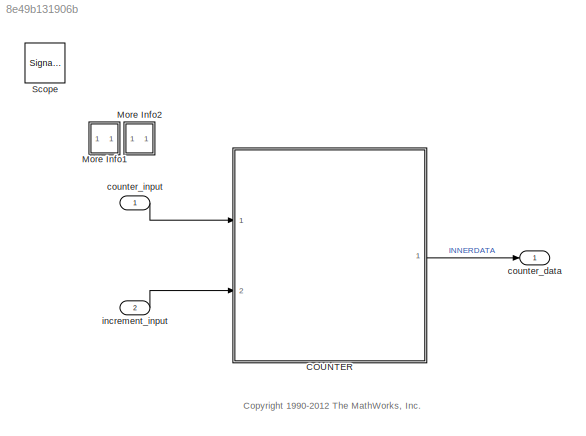
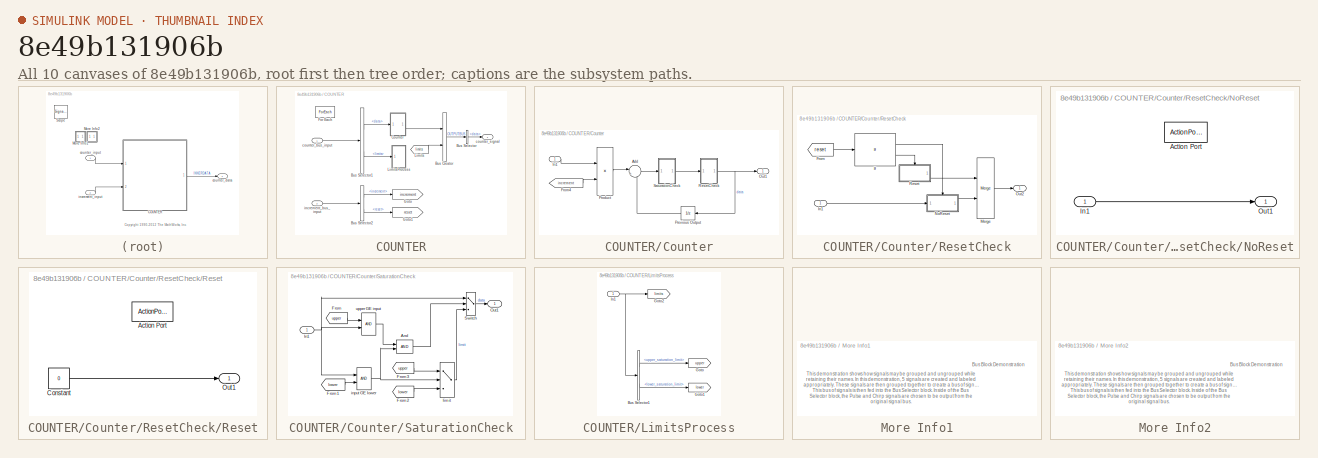
[diagram: thumbnail index - all 10 canvases of the model, root first then tree order]
MODEL slx_8e49b131906b
KIND model
CONFIG PreLoadFcn = load sldemo_mdlref_counter_bus.mat
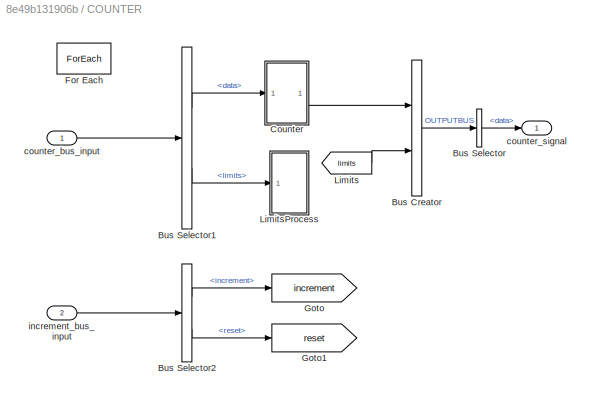
BLOCK [SubSystem] COUNTER
  FunctionWithSeparateData = off
  MaskHideContents = off
  MinAlgLoopOccurrences = off
  Opaque = off
  Ports = [2, 1]
  PropExecContextOutsideSubsystem = off
  RTWSystemCode = Auto
  RequestExecContextInheritance = off
BLOCK [BusCreator] COUNTER/Bus Creator
  DisplayOption = bar
  Inputs = 2
  NonVirtualBus = on
  OutDataTypeStr = Bus: COUNTERBUS
  Ports = [2, 1]
BLOCK [BusSelector] COUNTER/Bus Selector
  OutputSignals = data
  Ports = [1, 1]
BLOCK [BusSelector] COUNTER/Bus Selector1
  OutputSignals = data,limits
  Ports = [1, 2]
BLOCK [BusSelector] COUNTER/Bus Selector2
  OutputSignals = increment,reset
  Ports = [1, 2]
BLOCK [SubSystem] COUNTER/Counter
  FunctionWithSeparateData = off
  MaskHideContents = off
  MinAlgLoopOccurrences = off
  Opaque = off
  Ports = [1, 1]
  PropExecContextOutsideSubsystem = off
  RTWSystemCode = Auto
  RequestExecContextInheritance = off
BLOCK [Sum] COUNTER/Counter/Add
  IconShape = round
  InputSameDT = off
  Inputs = |++
  OutDataTypeStr = Inherit: Inherit via internal rule
  Ports = [2, 1]
  SaturateOnIntegerOverflow = off
BLOCK [From] COUNTER/Counter/From4
  GotoTag = increment
  TagVisibility = global
BLOCK [Inport] COUNTER/Counter/In1
  IconDisplay = Port number
BLOCK [Outport] COUNTER/Counter/Out1
  IconDisplay = Port number
BLOCK [UnitDelay] COUNTER/Counter/Previous Output
  SampleTime = -1
BLOCK [Product] COUNTER/Counter/Product
  InputSameDT = off
  OutDataTypeStr = int32
  Ports = [2, 1]
  SaturateOnIntegerOverflow = off
BLOCK [SubSystem] COUNTER/Counter/ResetCheck
  FunctionWithSeparateData = off
  MaskHideContents = off
  MinAlgLoopOccurrences = off
  Opaque = off
  Ports = [1, 1]
  PropExecContextOutsideSubsystem = off
  RTWSystemCode = Auto
  RequestExecContextInheritance = off
BLOCK [From] COUNTER/Counter/ResetCheck/From
  GotoTag = reset
  TagVisibility = global
BLOCK [If] COUNTER/Counter/ResetCheck/If
  IfExpression = ~u1
  Ports = [1, 2]
BLOCK [Inport] COUNTER/Counter/ResetCheck/In1
  IconDisplay = Port number
BLOCK [Merge] COUNTER/Counter/ResetCheck/Merge
  Ports = [2, 1]
BLOCK [SubSystem] COUNTER/Counter/ResetCheck/NoReset
  FunctionWithSeparateData = off
  MaskHideContents = off
  MinAlgLoopOccurrences = off
  Opaque = off
  Ports = [1, 1, 0, 0, 0, 0, 0, 1]
  PropExecContextOutsideSubsystem = off
  RTWSystemCode = Auto
  RequestExecContextInheritance = off
  TreatAsAtomicUnit = on
BLOCK [ActionPort] COUNTER/Counter/ResetCheck/NoReset/Action Port
  ActionType = then
BLOCK [Inport] COUNTER/Counter/ResetCheck/NoReset/In1
  IconDisplay = Port number
BLOCK [Outport] COUNTER/Counter/ResetCheck/NoReset/Out1
  IconDisplay = Port number
BLOCK [Outport] COUNTER/Counter/ResetCheck/Out2
  IconDisplay = Port number
BLOCK [SubSystem] COUNTER/Counter/ResetCheck/Reset
  FunctionWithSeparateData = off
  MaskHideContents = off
  MinAlgLoopOccurrences = off
  Opaque = off
  Ports = [0, 1, 0, 0, 0, 0, 0, 1]
  PropExecContextOutsideSubsystem = off
  RTWSystemCode = Auto
  RequestExecContextInheritance = off
  TreatAsAtomicUnit = on
BLOCK [ActionPort] COUNTER/Counter/ResetCheck/Reset/Action Port
  ActionType = else
BLOCK [Constant] COUNTER/Counter/ResetCheck/Reset/Constant
  OutDataTypeStr = int32
  Value = 0
BLOCK [Outport] COUNTER/Counter/ResetCheck/Reset/Out1
  IconDisplay = Port number
  InitialOutput = 0
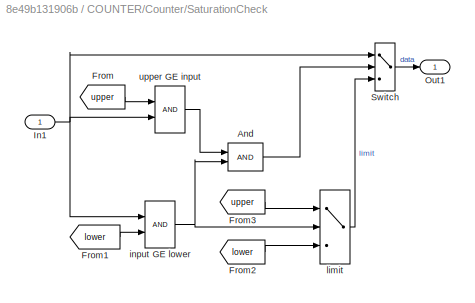
BLOCK [SubSystem] COUNTER/Counter/SaturationCheck
  FunctionWithSeparateData = off
  MaskHideContents = off
  MinAlgLoopOccurrences = off
  Opaque = off
  Ports = [1, 1]
  PropExecContextOutsideSubsystem = off
  RTWSystemCode = Auto
  RequestExecContextInheritance = off
BLOCK [RelationalOperator] COUNTER/Counter/SaturationCheck/ input GE lower
  AttributesFormatString = \n
  OutDataTypeStr = boolean
  Ports = [2, 1]
  Priority = 1
BLOCK [Logic] COUNTER/Counter/SaturationCheck/And
  IconShape = distinctive
  OutDataTypeStr = boolean
  Ports = [2, 1]
BLOCK [From] COUNTER/Counter/SaturationCheck/From
  GotoTag = upper
  TagVisibility = global
BLOCK [From] COUNTER/Counter/SaturationCheck/From1
  GotoTag = lower
  TagVisibility = global
BLOCK [From] COUNTER/Counter/SaturationCheck/From2
  GotoTag = lower
  TagVisibility = global
BLOCK [From] COUNTER/Counter/SaturationCheck/From3
  GotoTag = upper
  TagVisibility = global
BLOCK [Inport] COUNTER/Counter/SaturationCheck/In1
  IconDisplay = Port number
BLOCK [Outport] COUNTER/Counter/SaturationCheck/Out1
  IconDisplay = Port number
BLOCK [Switch] COUNTER/Counter/SaturationCheck/Switch
  Threshold = 0.5
BLOCK [Switch] COUNTER/Counter/SaturationCheck/limit
  Threshold = 0.5
BLOCK [RelationalOperator] COUNTER/Counter/SaturationCheck/upper GE input
  AttributesFormatString = \n
  OutDataTypeStr = boolean
  Ports = [2, 1]
  Priority = 0
BLOCK [ForEach] COUNTER/For Each
  DisableCoverage = on
  IndexMode = One-based
  Ports = []
BLOCK [Goto] COUNTER/Goto
  GotoTag = increment
  TagVisibility = global
BLOCK [Goto] COUNTER/Goto1
  GotoTag = reset
  TagVisibility = global
BLOCK [From] COUNTER/Limits
  GotoTag = limits
  TagVisibility = global
BLOCK [SubSystem] COUNTER/LimitsProcess
  FunctionWithSeparateData = off
  MaskHideContents = off
  MinAlgLoopOccurrences = off
  Opaque = off
  Ports = [1]
  PropExecContextOutsideSubsystem = off
  RTWSystemCode = Auto
  RequestExecContextInheritance = off
BLOCK [BusSelector] COUNTER/LimitsProcess/Bus Selector1
  OutputSignals = upper_saturation_limit,lower_saturation_limit
  Ports = [1, 2]
BLOCK [Goto] COUNTER/LimitsProcess/Goto
  GotoTag = upper
  TagVisibility = global
BLOCK [Goto] COUNTER/LimitsProcess/Goto1
  GotoTag = lower
  TagVisibility = global
BLOCK [Goto] COUNTER/LimitsProcess/Goto2
  GotoTag = limits
  TagVisibility = global
BLOCK [Inport] COUNTER/LimitsProcess/In1
  IconDisplay = Port number
BLOCK [Inport] COUNTER/counter_bus_input
  IconDisplay = Port number
  OutDataTypeStr = Bus: COUNTERBUS
  Partition = on
  PartitionDimension = 1
  PartitionWidth = 1
BLOCK [Outport] COUNTER/counter_signal
  ConcatenationDimension = 1
  IconDisplay = Port number
BLOCK [Inport] COUNTER/increment_bus_input
  IconDisplay = Port number
  OutDataTypeStr = Bus: INCREMENTBUS
  Partition = off
  Port = 2
BLOCK [SubSystem] More Info1
  FunctionWithSeparateData = off
  MaskHideContents = off
  MinAlgLoopOccurrences = off
  Opaque = off
  OpenFcn = showdemo('sldemo_mdlref_bus')
  Ports = []
  PropExecContextOutsideSubsystem = off
  RTWSystemCode = Auto
  RequestExecContextInheritance = off
BLOCK [SubSystem] More Info2
  FunctionWithSeparateData = off
  MaskHideContents = off
  MinAlgLoopOccurrences = off
  Opaque = off
  OpenFcn = html = fullfile(matlabroot, 'toolbox', 'simulink', 'simdemos', 'simfeatures', 'html', 'sldemo_mdlref_protect.html');\n                                                                                                                    \nif(isempty(dir(html)))                                                                                              \n   error('simdemos:sldemo_mdlref_bus:notFound','"...<+305ch>
  Ports = []
  PropExecContextOutsideSubsystem = off
  RTWSystemCode = Auto
  RequestExecContextInheritance = off
BLOCK [SignalViewerScope] Scope
  IOType = viewer
  MaxDataPoints = 7500
  NumInputPorts = 1
  Ports = []
  RefreshTime = 0.035000
  ShowDataMarkers = off
  ShowLegends = on
  YMax = 45
BLOCK [Outport] counter_data
  IconDisplay = Port number
BLOCK [Inport] counter_input
  BusOutputAsStruct = on
  IconDisplay = Port number
  OutDataTypeStr = Bus: COUNTERBUS
  PortDimensions = [2 1]
BLOCK [Inport] increment_input
  BusOutputAsStruct = on
  IconDisplay = Port number
  OutDataTypeStr = Bus: INCREMENTBUS
  Port = 2
  PortDimensions = 1
ANNOTATION (root): <copyright redacted>
ANNOTATION More Info1: Bus Block Demonstration
ANNOTATION More Info1: This demonstration shows how signals may be grouped and ungrouped while retaining their names. In this demonstration, 5 signals are created and labeled appropriately. These signals are then grouped together to create a bus of signals. This bus of signals is then fed into the Bus Selector block. Inside of the Bus Selector block, the Pulse and Chirp signals are chosen to be output from the original ...<+115ch>
ANNOTATION More Info2: Bus Block Demonstration
ANNOTATION More Info2: This demonstration shows how signals may be grouped and ungrouped while retaining their names. In this demonstration, 5 signals are created and labeled appropriately. These signals are then grouped together to create a bus of signals. This bus of signals is then fed into the Bus Selector block. Inside of the Bus Selector block, the Pulse and Chirp signals are chosen to be output from the original ...<+115ch>
LINE COUNTER/Bus Creator:1 -> COUNTER/Bus Selector:1
LINE COUNTER/Bus Selector1:1 -> COUNTER/Counter:1
LINE COUNTER/Bus Selector1:2 -> COUNTER/LimitsProcess:1
LINE COUNTER/Bus Selector2:1 -> COUNTER/Goto:1
LINE COUNTER/Bus Selector2:2 -> COUNTER/Goto1:1
LINE COUNTER/Bus Selector:1 -> COUNTER/counter_signal:1
LINE COUNTER/Counter/Add:1 -> COUNTER/Counter/SaturationCheck:1
LINE COUNTER/Counter/From4:1 -> COUNTER/Counter/Product:2
LINE COUNTER/Counter/In1:1 -> COUNTER/Counter/Product:1
LINE COUNTER/Counter/Previous Output:1 -> COUNTER/Counter/Add:2
LINE COUNTER/Counter/Product:1 -> COUNTER/Counter/Add:1
LINE COUNTER/Counter/ResetCheck/From:1 -> COUNTER/Counter/ResetCheck/If:1
LINE COUNTER/Counter/ResetCheck/If:1 -> COUNTER/Counter/ResetCheck/NoReset:ifaction
LINE COUNTER/Counter/ResetCheck/If:2 -> COUNTER/Counter/ResetCheck/Reset:ifaction
LINE COUNTER/Counter/ResetCheck/In1:1 -> COUNTER/Counter/ResetCheck/NoReset:1
LINE COUNTER/Counter/ResetCheck/Merge:1 -> COUNTER/Counter/ResetCheck/Out2:1
LINE COUNTER/Counter/ResetCheck/NoReset/In1:1 -> COUNTER/Counter/ResetCheck/NoReset/Out1:1
LINE COUNTER/Counter/ResetCheck/NoReset:1 -> COUNTER/Counter/ResetCheck/Merge:2
LINE COUNTER/Counter/ResetCheck/Reset/Constant:1 -> COUNTER/Counter/ResetCheck/Reset/Out1:1
LINE COUNTER/Counter/ResetCheck/Reset:1 -> COUNTER/Counter/ResetCheck/Merge:1
NET COUNTER/Counter/ResetCheck:1 -> COUNTER/Counter/Out1:1, COUNTER/Counter/Previous Output:1
NET COUNTER/Counter/SaturationCheck/ input GE lower:1 -> COUNTER/Counter/SaturationCheck/And:2, COUNTER/Counter/SaturationCheck/limit:2
LINE COUNTER/Counter/SaturationCheck/And:1 -> COUNTER/Counter/SaturationCheck/Switch:2
LINE COUNTER/Counter/SaturationCheck/From1:1 -> COUNTER/Counter/SaturationCheck/ input GE lower:2
LINE COUNTER/Counter/SaturationCheck/From2:1 -> COUNTER/Counter/SaturationCheck/limit:3
LINE COUNTER/Counter/SaturationCheck/From3:1 -> COUNTER/Counter/SaturationCheck/limit:1
LINE COUNTER/Counter/SaturationCheck/From:1 -> COUNTER/Counter/SaturationCheck/upper GE input:1
NET COUNTER/Counter/SaturationCheck/In1:1 -> COUNTER/Counter/SaturationCheck/ input GE lower:1, COUNTER/Counter/SaturationCheck/Switch:1, COUNTER/Counter/SaturationCheck/upper GE input:2
LINE COUNTER/Counter/SaturationCheck/Switch:1 -> COUNTER/Counter/SaturationCheck/Out1:1
LINE COUNTER/Counter/SaturationCheck/limit:1 -> COUNTER/Counter/SaturationCheck/Switch:3
LINE COUNTER/Counter/SaturationCheck/upper GE input:1 -> COUNTER/Counter/SaturationCheck/And:1
LINE COUNTER/Counter/SaturationCheck:1 -> COUNTER/Counter/ResetCheck:1
LINE COUNTER/Counter:1 -> COUNTER/Bus Creator:1
LINE COUNTER/Limits:1 -> COUNTER/Bus Creator:2
LINE COUNTER/LimitsProcess/Bus Selector1:1 -> COUNTER/LimitsProcess/Goto:1
LINE COUNTER/LimitsProcess/Bus Selector1:2 -> COUNTER/LimitsProcess/Goto1:1
NET COUNTER/LimitsProcess/In1:1 -> COUNTER/LimitsProcess/Bus Selector1:1, COUNTER/LimitsProcess/Goto2:1
LINE COUNTER/counter_bus_input:1 -> COUNTER/Bus Selector1:1
LINE COUNTER/increment_bus_input:1 -> COUNTER/Bus Selector2:1
LINE COUNTER:1 -> counter_data:1
LINE counter_input:1 -> COUNTER:1
LINE increment_input:1 -> COUNTER:2
note: NET lines group one-source signal fan-out (src -> all destinations, sorted); 1:1 wires keep LINE
